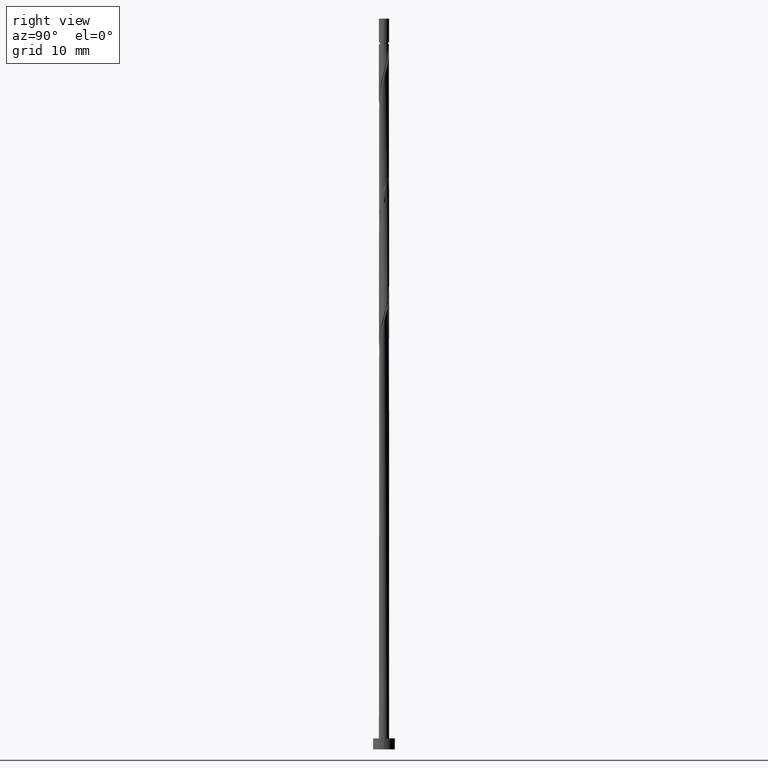
[diagram: clean part render]
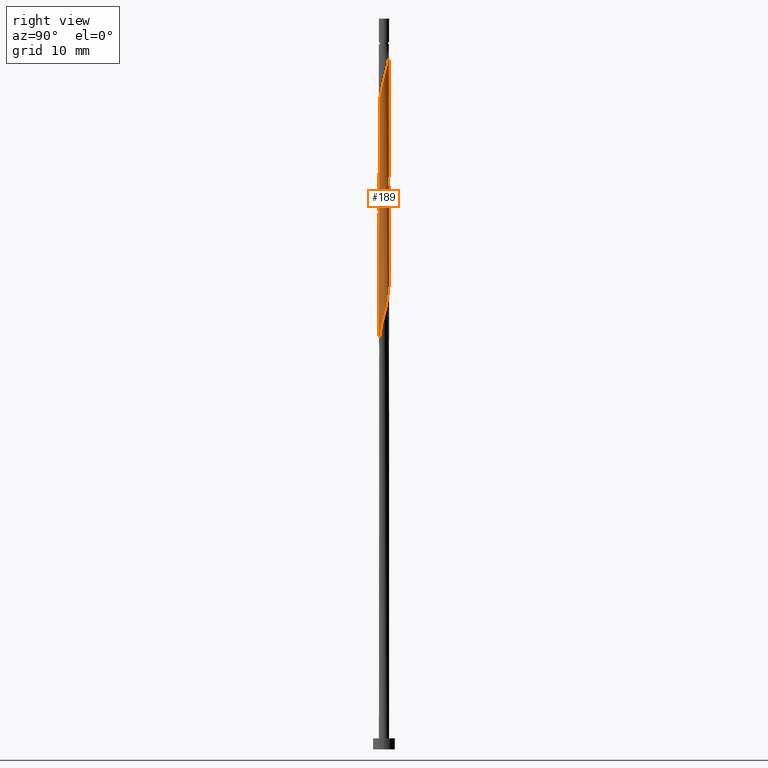
[diagram: same view with one face highlighted and labeled with its STEP entity id]
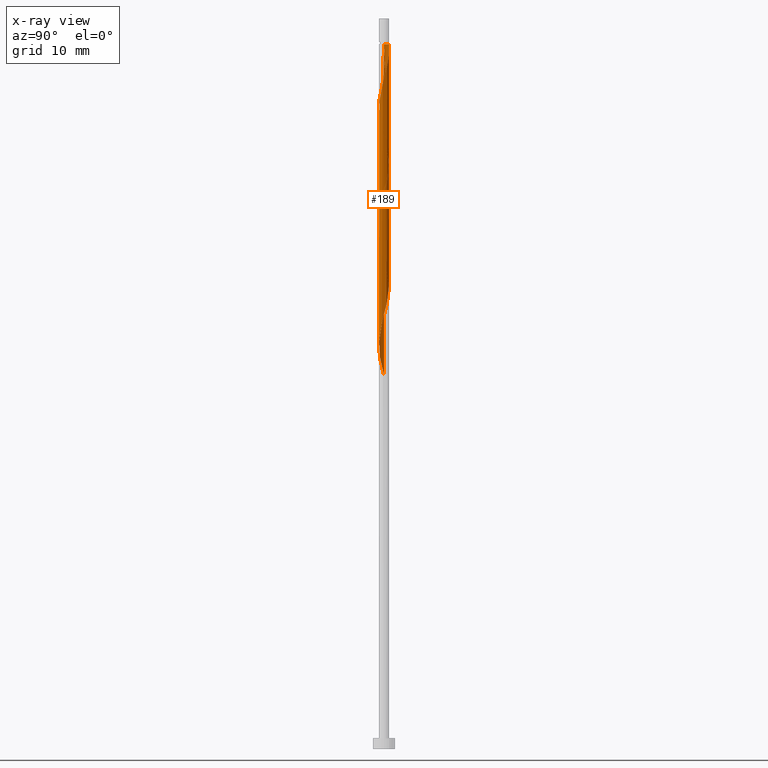
[diagram: x-ray of the same camera — body ghosted, the highlighted face saturated]
A machine part, right view. The second image highlights one B-rep face of the part: STEP entity #189.
The next image is the same camera in x-ray: the body ghosted, the highlighted face saturated — about 0% of this face is hidden behind the body in this view.
In plain terms, the highlighted cylindrical surface (bore or boss wall) has radius 0.7 mm, axis along (-0, -0, -1).
Its self-contained STEP definition (entity closure, byte-faithful):
#5 = CARTESIAN_POINT ( 'NONE',  ( -0.7000000000000009548, -4.406995131333641256E-16, 51.18214205642719605 ) ) ;
#11 = EDGE_CURVE ( 'NONE', #838, #365, #947, .T. ) ;
#19 = CARTESIAN_POINT ( 'NONE',  ( 0.7000000000000009548, 1.830023401994478145E-16, 76.18214205642722447 ) ) ;
#22 = CARTESIAN_POINT ( 'NONE',  ( 0.6513892328306682966, 0.2563046377892427286, 92.78091679773474709 ) ) ;
#25 = CARTESIAN_POINT ( 'NONE',  ( -0.2602585499609342823, -0.6614379617121001198, 71.02165753847550889 ) ) ;
#28 = CARTESIAN_POINT ( 'NONE',  ( 0.1392982411949271471, 0.6860000000000012754, 79.81795383477175676 ) ) ;
#33 = CARTESIAN_POINT ( 'NONE',  ( 0.2602585499609340602, 0.6614379617121001198, 79.35499087180882327 ) ) ;
#46 = CIRCLE ( 'NONE', #641, 0.7000000000000002887 ) ;
#51 = CARTESIAN_POINT ( 'NONE',  ( -0.6637425475935894159, -0.2223641844227016995, 68.70684272366065670 ) ) ;
#57 = CARTESIAN_POINT ( 'NONE',  ( 0.5244443063986623521, -0.4636358155772996592, 57.59573161254954954 ) ) ;
#62 = CARTESIAN_POINT ( 'NONE',  ( -0.7000000000000011768, 4.612405921353430004E-16, 84.51547538976051044 ) ) ;
#97 = CARTESIAN_POINT ( 'NONE',  ( -0.3655233476607376852, -0.5969863334406317890, 53.89202790884585426 ) ) ;
#103 = CARTESIAN_POINT ( 'NONE',  ( -0.4707881453605410882, -0.5325347051691633471, 53.42906494588288524 ) ) ;
#111 = CARTESIAN_POINT ( 'NONE',  ( 0.7029513528505444420, -0.1053284650377800530, 91.39202790884586136 ) ) ;
#116 = DIRECTION ( 'NONE',  ( -1.000000000000000000, 0.000000000000000000, 0.000000000000000000 ) ) ;
#117 = CARTESIAN_POINT ( 'NONE',  ( 0.5244443063986623521, -0.4636358155772996592, 74.26239827921619963 ) ) ;
#151 = CARTESIAN_POINT ( 'NONE',  ( 0.6997670043020833841, -0.01805933803021442241, 59.44758346440140429 ) ) ;
#159 = EDGE_CURVE ( 'NONE', #1133, #1107, #1301, .T. ) ;
#160 = CARTESIAN_POINT ( 'NONE',  ( -0.6061958099077143780, 0.3711621344802780720, 66.39202790884584715 ) ) ;
#184 = CARTESIAN_POINT ( 'NONE',  ( -0.6997670043020833841, -0.01805933803021412751, 83.52165753847545204 ) ) ;
#189 = ADVANCED_FACE ( 'NONE', ( #1176 ), #339, .T. ) ;
#192 = AXIS2_PLACEMENT_3D ( 'NONE', #439, #240, #658 ) ;
#204 = CARTESIAN_POINT ( 'NONE',  ( -0.2257945103930810715, -0.6739818462673711208, 86.76239827921624226 ) ) ;
#234 = CARTESIAN_POINT ( 'NONE',  ( 0.000000000000000000, 0.000000000000000000, 96.48462050143844237 ) ) ;
#240 = DIRECTION ( 'NONE',  ( -0.000000000000000000, -0.000000000000000000, -1.000000000000000000 ) ) ;
#253 = CARTESIAN_POINT ( 'NONE',  ( -0.5244443063986623521, 0.4636358155772993817, 65.92906494588288524 ) ) ;
#260 = CARTESIAN_POINT ( 'NONE',  ( -0.6513892328306682966, 0.2563046377892430061, 83.52165753847546625 ) ) ;
#267 = CARTESIAN_POINT ( 'NONE',  ( 0.6245337423366339458, 0.3393999038076240815, 77.50313901995696142 ) ) ;
#292 = CARTESIAN_POINT ( 'NONE',  ( -0.01833793242892000144, -0.7105620382879020980, 55.28091679773473288 ) ) ;
#296 = EDGE_CURVE ( 'NONE', #1133, #365, #1082, .T. ) ;
#316 = CARTESIAN_POINT ( 'NONE',  ( -0.5244443063986624631, -0.4636358155772990486, 85.37350939032732811 ) ) ;
#335 = DIRECTION ( 'NONE',  ( -0.000000000000000000, -0.000000000000000000, -1.000000000000000000 ) ) ;
#339 = CYLINDRICAL_SURFACE ( 'NONE', #192, 0.6999999999999999556 ) ;
#348 = CARTESIAN_POINT ( 'NONE',  ( 0.3655233476607380738, 0.5969863334406314559, 78.89202790884584715 ) ) ;
#349 = EDGE_CURVE ( 'NONE', #1173, #1107, #46, .T. ) ;
#351 = CARTESIAN_POINT ( 'NONE',  ( -0.6999999999999999556, 0.000000000000000000, 100.0000000000000000 ) ) ;
#353 = CARTESIAN_POINT ( 'NONE',  ( 0.7000000000000008438, -0.009031172032414765821, 76.14812468249485278 ) ) ;
#365 = VERTEX_POINT ( 'NONE', #865 ) ;
#372 = CARTESIAN_POINT ( 'NONE',  ( 0.6245337423366339458, 0.3393999038076240815, 60.83647235329029712 ) ) ;
#380 = CARTESIAN_POINT ( 'NONE',  ( 0.2257945103930809327, -0.6739818462673716759, 56.20684272366064960 ) ) ;
#391 = CARTESIAN_POINT ( 'NONE',  ( -0.3342436566413457544, 0.6150456714708457673, 65.00313901995694721 ) ) ;
#393 = VERTEX_POINT ( 'NONE', #974 ) ;
#436 = CARTESIAN_POINT ( 'NONE',  ( -0.3655233476607376852, -0.5969863334406317890, 70.55869457551250434 ) ) ;
#439 = CARTESIAN_POINT ( 'NONE',  ( 0.000000000000000000, 0.000000000000000000, 100.0000000000000000 ) ) ;
#441 = CARTESIAN_POINT ( 'NONE',  ( 0.6999999999999999556, 8.572527594031471957E-17, 100.0000000000000000 ) ) ;
#442 = CARTESIAN_POINT ( 'NONE',  ( -0.5476609438485877668, -0.4359673044883936588, 69.63276864958660894 ) ) ;
#447 = CARTESIAN_POINT ( 'NONE',  ( 0.6637425475935895269, 0.2223641844227018660, 77.04017605699402793 ) ) ;
#458 = CARTESIAN_POINT ( 'NONE',  ( 0.3342436566413457544, -0.6150456714708457673, 73.33647235329027581 ) ) ;
#469 = ORIENTED_EDGE ( 'NONE', *, *, #1315, .F. ) ;
#472 = DIRECTION ( 'NONE',  ( -0.000000000000000000, -0.000000000000000000, -1.000000000000000000 ) ) ;
#473 = CARTESIAN_POINT ( 'NONE',  ( -0.6965826557536223262, 0.1414471410982080235, 67.31795383477177097 ) ) ;
#477 = EDGE_LOOP ( 'NONE', ( #904, #525, #486, #922, #1077, #469, #959, #1219 ) ) ;
#484 = CARTESIAN_POINT ( 'NONE',  ( 0.6513892328306682966, -0.2563046377892429506, 58.52165753847549468 ) ) ;
#486 = ORIENTED_EDGE ( 'NONE', *, *, #159, .F. ) ;
#498 = CARTESIAN_POINT ( 'NONE',  ( -0.7000000000000010658, -4.033520967661301485E-16, 83.45376561311633168 ) ) ;
#509 = CARTESIAN_POINT ( 'NONE',  ( -0.4426928028896104372, -0.5561094966743203027, 85.83647235329029002 ) ) ;
#515 = CARTESIAN_POINT ( 'NONE',  ( -0.1392982411949270360, -0.6860000000000012754, 54.81795383477176387 ) ) ;
#522 = CARTESIAN_POINT ( 'NONE',  ( -0.3342436566413458654, -0.6150456714708457673, 86.29943531625326614 ) ) ;
#525 = ORIENTED_EDGE ( 'NONE', *, *, #349, .T. ) ;
#540 = CARTESIAN_POINT ( 'NONE',  ( -0.1392982411949270360, -0.6860000000000012754, 71.48462050143847080 ) ) ;
#550 = CARTESIAN_POINT ( 'NONE',  ( 0.4426928028896104372, -0.5561094966743207468, 73.79943531625325193 ) ) ;
#554 = CARTESIAN_POINT ( 'NONE',  ( 0.6061958099077143780, 0.3711621344802775724, 93.24387976069768058 ) ) ;
#557 = CARTESIAN_POINT ( 'NONE',  ( 0.6061958099077141560, -0.3711621344802785161, 74.72536124217918996 ) ) ;
#565 = VECTOR ( 'NONE', #999, 1000.000000000000000 ) ;
#577 = CARTESIAN_POINT ( 'NONE',  ( -0.6965826557536223262, 0.1414471410982080235, 83.98462050143844237 ) ) ;
#584 = CARTESIAN_POINT ( 'NONE',  ( -0.2257945103930810438, 0.6739818462673713428, 81.20684272366064249 ) ) ;
#588 = CARTESIAN_POINT ( 'NONE',  ( 0.6965826557536223262, -0.1414471410982081345, 58.98462050143844237 ) ) ;
#598 = CARTESIAN_POINT ( 'NONE',  ( -0.6513892328306682966, 0.2563046377892430061, 66.85499087180880906 ) ) ;
#627 = CARTESIAN_POINT ( 'NONE',  ( 0.6245337423366339458, -0.3393999038076242480, 90.46610198291992333 ) ) ;
#641 = AXIS2_PLACEMENT_3D ( 'NONE', #234, #335, #116 ) ;
#649 = CARTESIAN_POINT ( 'NONE',  ( 0.5476609438485873227, -0.4359673044883936588, 90.00313901995697563 ) ) ;
#658 = DIRECTION ( 'NONE',  ( -1.000000000000000000, 0.000000000000000000, 0.000000000000000000 ) ) ;
#659 = CARTESIAN_POINT ( 'NONE',  ( -0.01833793242892000144, -0.7105620382879020980, 71.94758346440141850 ) ) ;
#669 = CARTESIAN_POINT ( 'NONE',  ( 0.4426928028896104927, 0.5561094966743203027, 94.16980568662361861 ) ) ;
#678 = CARTESIAN_POINT ( 'NONE',  ( -0.6997670043020833841, 0.01805933803021419343, 84.44758346440139007 ) ) ;
#681 = CARTESIAN_POINT ( 'NONE',  ( -0.7000000000000002887, 0.000000000000000000, 96.48462050143844237 ) ) ;
#684 = CARTESIAN_POINT ( 'NONE',  ( 0.6513892328306682966, -0.2563046377892429506, 75.18832420514213766 ) ) ;
#690 = CARTESIAN_POINT ( 'NONE',  ( -0.1037282889820806686, 0.6922719422776366649, 64.07721309403102339 ) ) ;
#695 = CARTESIAN_POINT ( 'NONE',  ( 0.1392982411949271471, 0.6860000000000012754, 63.15128716810511378 ) ) ;
#702 = CARTESIAN_POINT ( 'NONE',  ( 0.01833793242891973430, 0.7105620382879019870, 80.28091679773476130 ) ) ;
#733 = CARTESIAN_POINT ( 'NONE',  ( 0.1392982411949268418, -0.6860000000000009424, 88.15128716810511378 ) ) ;
#749 = CARTESIAN_POINT ( 'NONE',  ( -0.5476609438485877668, -0.4359673044883936588, 52.96610198291993044 ) ) ;
#757 = CARTESIAN_POINT ( 'NONE',  ( 0.4707881453605408661, -0.5325347051691634581, 89.54017605699398530 ) ) ;
#765 = CARTESIAN_POINT ( 'NONE',  ( 0.2257945103930814323, 0.6739818462673710098, 95.09573161254954243 ) ) ;
#767 = CARTESIAN_POINT ( 'NONE',  ( 0.6997670043020833841, -0.01805933803021442241, 76.11425013106806148 ) ) ;
#781 = VECTOR ( 'NONE', #1283, 1000.000000000000000 ) ;
#791 = CARTESIAN_POINT ( 'NONE',  ( 0.6965826557536223262, -0.1414471410982081345, 75.65128716810509957 ) ) ;
#798 = CARTESIAN_POINT ( 'NONE',  ( -0.4426928028896104927, 0.5561094966743204138, 65.46610198291992333 ) ) ;
#805 = CARTESIAN_POINT ( 'NONE',  ( 0.4707881453605415323, 0.5325347051691630140, 61.76239827921622094 ) ) ;
#813 = CARTESIAN_POINT ( 'NONE',  ( -0.1392982411949209298, 0.6860000000000011644, 96.48462050143838553 ) ) ;
#823 = CARTESIAN_POINT ( 'NONE',  ( -0.6997670043020833841, 0.01805933803021419343, 67.78091679773473288 ) ) ;
#831 = CARTESIAN_POINT ( 'NONE',  ( -0.2257945103930810438, 0.6739818462673713428, 64.54017605699399951 ) ) ;
#838 = VERTEX_POINT ( 'NONE', #1201 ) ;
#849 = CARTESIAN_POINT ( 'NONE',  ( -0.7000000000000010658, -0.009031172032416346154, 83.48778298704868917 ) ) ;
#865 = CARTESIAN_POINT ( 'NONE',  ( -0.7000000000000009548, -4.406995131333641256E-16, 51.18214205642719605 ) ) ;
#875 = CARTESIAN_POINT ( 'NONE',  ( 0.3342436566413459764, 0.6150456714708456563, 94.63276864958658052 ) ) ;
#877 = CARTESIAN_POINT ( 'NONE',  ( 0.6997670043020833841, 0.01805933803021418996, 91.85499087180882327 ) ) ;
#882 = EDGE_CURVE ( 'NONE', #909, #838, #1026, .T. ) ;
#885 = CARTESIAN_POINT ( 'NONE',  ( -0.1392982411949209021, 0.6860000000000011644, 96.48462050143838553 ) ) ;
#886 = LINE ( 'NONE', #441, #565 ) ;
#890 = CARTESIAN_POINT ( 'NONE',  ( -0.7000000000000009548, 0.009031172032413995604, 84.48145801582813874 ) ) ;
#900 = CARTESIAN_POINT ( 'NONE',  ( -0.6245337423366339458, -0.3393999038076241925, 69.16980568662361861 ) ) ;
#904 = ORIENTED_EDGE ( 'NONE', *, *, #1279, .F. ) ;
#909 = VERTEX_POINT ( 'NONE', #62 ) ;
#911 = CARTESIAN_POINT ( 'NONE',  ( -0.5244443063986623521, 0.4636358155772993817, 82.59573161254952822 ) ) ;
#919 = CARTESIAN_POINT ( 'NONE',  ( 0.3342436566413457544, -0.6150456714708457673, 56.66980568662363282 ) ) ;
#922 = ORIENTED_EDGE ( 'NONE', *, *, #296, .T. ) ;
#938 = CARTESIAN_POINT ( 'NONE',  ( -0.2602585499609342823, -0.6614379617121001198, 54.35499087180882327 ) ) ;
#947 =( BOUNDED_CURVE ( )  B_SPLINE_CURVE ( 2, ( #19, #353, #767, #791, #684, #557, #117, #550, #458, #981, #1206, #659, #540, #25, #436, #987, #442, #900, #51, #1337, #823, #473, #598, #160, #253, #798, #391, #831, #690, #1308, #695, #1314, #1007, #805, #1216, #372, #1025, #1116, #151, #588, #484, #1017, #57, #1328, #919, #380, #1229, #292, #515, #938, #97, #103, #749, #1240, #1163, #1350, #5 ),
 .UNSPECIFIED., .F., .T. ) 
 B_SPLINE_CURVE_WITH_KNOTS ( ( 3, 2, 2, 2, 2, 2, 2, 2, 2, 2, 2, 2, 2, 2, 2, 2, 2, 2, 2, 2, 2, 2, 2, 2, 2, 2, 2, 2, 3 ),
 ( 0.5545248053855290626, 0.5555555555555555802, 0.5694444444444444198, 0.5833333333333333703, 0.5972222222222222099, 0.6111111111111111605, 0.6250000000000000000, 0.6388888888888888395, 0.6527777777777777901, 0.6666666666666666297, 0.6805555555555555802, 0.6944444444444444198, 0.7083333333333333703, 0.7222222222222222099, 0.7361111111111111605, 0.7500000000000000000, 0.7638888888888888395, 0.7777777777777777901, 0.7916666666666666297, 0.8055555555555555802, 0.8194444444444444198, 0.8333333333333333703, 0.8472222222222222099, 0.8611111111111111605, 0.8750000000000000000, 0.8888888888888888395, 0.9027777777777777901, 0.9166666666666666297, 0.9295248053855290626 ),
 .UNSPECIFIED. ) 
 CURVE ( )  GEOMETRIC_REPRESENTATION_ITEM ( )  RATIONAL_B_SPLINE_CURVE ( ( 0.9071930855141261407, 0.9080659294509737522, 0.9090909090909138346, 0.8952797754656482976, 0.9090909090909138346, 0.8952797754656482976, 0.9090909090909138346, 0.8952797754656482976, 0.9090909090909138346, 0.8952797754656482976, 0.9090909090909138346, 0.8952797754656482976, 0.9090909090909138346, 0.8952797754656482976, 0.9090909090909138346, 0.8952797754656482976, 0.9090909090909138346, 0.8952797754656482976, 0.9090909090909138346, 0.8952797754656482976, 0.9090909090909138346, 0.8952797754656482976, 0.9090909090909138346, 0.8952797754656482976, 0.9090909090909138346, 0.8952797754656482976, 0.9090909090909138346, 0.8952797754656482976, 0.9090909090909138346, 0.8952797754656482976, 0.9090909090909138346, 0.8952797754656482976, 0.9090909090909138346, 0.8952797754656482976, 0.9090909090909138346, 0.8952797754656482976, 0.9090909090909138346, 0.8952797754656482976, 0.9090909090909138346, 0.8952797754656482976, 0.9090909090909138346, 0.8952797754656482976, 0.9090909090909138346, 0.8952797754656482976, 0.9090909090909138346, 0.8952797754656482976, 0.9090909090909138346, 0.8952797754656482976, 0.9090909090909138346, 0.8952797754656482976, 0.9090909090909138346, 0.8952797754656482976, 0.9090909090909138346, 0.8952797754656482976, 0.9090909090909138346, 0.8963047551055883799, 0.9071930855141261407 ) ) 
 REPRESENTATION_ITEM ( '' )  );
#958 = CARTESIAN_POINT ( 'NONE',  ( 0.01833793242891950878, -0.7105620382879020980, 87.68832420514215187 ) ) ;
#959 = ORIENTED_EDGE ( 'NONE', *, *, #1315, .T. ) ;
#965 = CARTESIAN_POINT ( 'NONE',  ( 0.2602585499609338382, -0.6614379617121002308, 88.61425013106808990 ) ) ;
#974 = CARTESIAN_POINT ( 'NONE',  ( 0.6999999999999999556, 8.572527594031471957E-17, 96.48462050143844237 ) ) ;
#981 = CARTESIAN_POINT ( 'NONE',  ( 0.2257945103930809327, -0.6739818462673716759, 72.87350939032731389 ) ) ;
#984 = CARTESIAN_POINT ( 'NONE',  ( 0.6637425475935891939, -0.2223641844227021713, 90.92906494588288524 ) ) ;
#987 = CARTESIAN_POINT ( 'NONE',  ( -0.4707881453605410882, -0.5325347051691633471, 70.09573161254952822 ) ) ;
#992 = CARTESIAN_POINT ( 'NONE',  ( -0.1037282889820806686, 0.6922719422776366649, 80.74387976069772321 ) ) ;
#993 = CARTESIAN_POINT ( 'NONE',  ( -0.6999999999999999556, 0.000000000000000000, 100.0000000000000000 ) ) ;
#999 = DIRECTION ( 'NONE',  ( -0.000000000000000000, -0.000000000000000000, -1.000000000000000000 ) ) ;
#1007 = CARTESIAN_POINT ( 'NONE',  ( 0.3655233476607380738, 0.5969863334406314559, 62.22536124217918285 ) ) ;
#1011 = VECTOR ( 'NONE', #472, 1000.000000000000000 ) ;
#1014 = LINE ( 'NONE', #351, #1011 ) ;
#1017 = CARTESIAN_POINT ( 'NONE',  ( 0.6061958099077141560, -0.3711621344802785161, 58.05869457551251855 ) ) ;
#1025 = CARTESIAN_POINT ( 'NONE',  ( 0.6637425475935895269, 0.2223641844227018660, 60.37350939032733521 ) ) ;
#1026 =( BOUNDED_CURVE ( )  B_SPLINE_CURVE ( 2, ( #1303, #890, #678, #577, #260, #1297, #911, #1312, #1092, #584, #992, #702, #28, #33, #348, #1319, #1222, #267, #447, #1099, #1293 ),
 .UNSPECIFIED., .F., .T. ) 
 B_SPLINE_CURVE_WITH_KNOTS ( ( 3, 2, 2, 2, 2, 2, 2, 2, 2, 2, 3 ),
 ( 0.4295248053855290071, 0.4305555555555555802, 0.4444444444444444198, 0.4583333333333333148, 0.4722222222222222099, 0.4861111111111111049, 0.5000000000000000000, 0.5138888888888888395, 0.5277777777777777901, 0.5416666666666666297, 0.5545248053855290626 ),
 .UNSPECIFIED. ) 
 CURVE ( )  GEOMETRIC_REPRESENTATION_ITEM ( )  RATIONAL_B_SPLINE_CURVE ( ( 0.9071930855141260297, 0.9080659294509737522, 0.9090909090909138346, 0.8952797754656482976, 0.9090909090909138346, 0.8952797754656482976, 0.9090909090909138346, 0.8952797754656482976, 0.9090909090909138346, 0.8952797754656482976, 0.9090909090909138346, 0.8952797754656482976, 0.9090909090909138346, 0.8952797754656482976, 0.9090909090909138346, 0.8952797754656482976, 0.9090909090909138346, 0.8952797754656482976, 0.9090909090909138346, 0.8963047551055883799, 0.9071930855141261407 ) ) 
 REPRESENTATION_ITEM ( '' )  );
#1072 = CARTESIAN_POINT ( 'NONE',  ( -0.6513892328306680746, -0.2563046377892428951, 84.44758346440140429 ) ) ;
#1077 = ORIENTED_EDGE ( 'NONE', *, *, #11, .F. ) ;
#1078 = CARTESIAN_POINT ( 'NONE',  ( 0.6965826557536219932, 0.1414471410982078292, 92.31795383477179939 ) ) ;
#1082 = LINE ( 'NONE', #993, #781 ) ;
#1090 = CARTESIAN_POINT ( 'NONE',  ( 0.5244443063986623521, 0.4636358155772992151, 93.70684272366065670 ) ) ;
#1092 = CARTESIAN_POINT ( 'NONE',  ( -0.3342436566413457544, 0.6150456714708457673, 81.66980568662364703 ) ) ;
#1099 = CARTESIAN_POINT ( 'NONE',  ( 0.7000000000000011768, 0.1141380602743195388, 76.61206156879282503 ) ) ;
#1107 = VERTEX_POINT ( 'NONE', #813 ) ;
#1116 = CARTESIAN_POINT ( 'NONE',  ( 0.7029513528505447750, 0.1053284650377791926, 59.91054642736436620 ) ) ;
#1133 = VERTEX_POINT ( 'NONE', #1182 ) ;
#1163 = CARTESIAN_POINT ( 'NONE',  ( -0.6637425475935894159, -0.2223641844227016995, 52.04017605699399240 ) ) ;
#1173 = VERTEX_POINT ( 'NONE', #681 ) ;
#1176 = FACE_OUTER_BOUND ( 'NONE', #477, .T. ) ;
#1181 = CARTESIAN_POINT ( 'NONE',  ( -0.01833793242891971695, 0.7105620382879018759, 96.02165753847543783 ) ) ;
#1182 = CARTESIAN_POINT ( 'NONE',  ( -0.7000000000000010658, -4.033520967661301485E-16, 83.45376561311633168 ) ) ;
#1195 = CARTESIAN_POINT ( 'NONE',  ( 0.1037282889820811543, 0.6922719422776364429, 95.55869457551253277 ) ) ;
#1201 = CARTESIAN_POINT ( 'NONE',  ( 0.7000000000000009548, 1.830023401994478145E-16, 76.18214205642722447 ) ) ;
#1206 = CARTESIAN_POINT ( 'NONE',  ( 0.1037282889820806547, -0.6922719422776366649, 72.41054642736436620 ) ) ;
#1216 = CARTESIAN_POINT ( 'NONE',  ( 0.5476609438485877668, 0.4359673044883934367, 61.29943531625325903 ) ) ;
#1219 = ORIENTED_EDGE ( 'NONE', *, *, #882, .F. ) ;
#1222 = CARTESIAN_POINT ( 'NONE',  ( 0.5476609438485877668, 0.4359673044883934367, 77.96610198291993754 ) ) ;
#1229 = CARTESIAN_POINT ( 'NONE',  ( 0.1037282889820806547, -0.6922719422776366649, 55.74387976069771611 ) ) ;
#1240 = CARTESIAN_POINT ( 'NONE',  ( -0.6245337423366339458, -0.3393999038076241925, 52.50313901995695431 ) ) ;
#1247 = CARTESIAN_POINT ( 'NONE',  ( -0.1037282889820807519, -0.6922719422776365539, 87.22536124217920417 ) ) ;
#1260 = CARTESIAN_POINT ( 'NONE',  ( -0.6061958099077141560, -0.3711621344802780720, 84.91054642736435198 ) ) ;
#1279 = EDGE_CURVE ( 'NONE', #1173, #909, #1014, .T. ) ;
#1283 = DIRECTION ( 'NONE',  ( -0.000000000000000000, -0.000000000000000000, -1.000000000000000000 ) ) ;
#1293 = CARTESIAN_POINT ( 'NONE',  ( 0.7000000000000009548, 1.830023401994478145E-16, 76.18214205642722447 ) ) ;
#1297 = CARTESIAN_POINT ( 'NONE',  ( -0.6061958099077143780, 0.3711621344802780720, 83.05869457551249013 ) ) ;
#1301 =( BOUNDED_CURVE ( )  B_SPLINE_CURVE ( 2, ( #498, #849, #184, #1342, #1072, #1260, #316, #509, #522, #204, #1247, #958, #733, #965, #1365, #757, #649, #627, #984, #111, #877, #1078, #22, #554, #1090, #669, #875, #765, #1195, #1181, #885 ),
 .UNSPECIFIED., .F., .T. ) 
 B_SPLINE_CURVE_WITH_KNOTS ( ( 3, 2, 2, 2, 2, 2, 2, 2, 2, 2, 2, 2, 2, 2, 2, 3 ),
 ( 0.5545248053855292847, 0.5555555555555555802, 0.5694444444444444198, 0.5833333333333332593, 0.5972222222222222099, 0.6111111111111111605, 0.6250000000000000000, 0.6388888888888888395, 0.6527777777777777901, 0.6666666666666667407, 0.6805555555555555802, 0.6944444444444444198, 0.7083333333333332593, 0.7222222222222222099, 0.7361111111111111605, 0.7500000000000000000 ),
 .UNSPECIFIED. ) 
 CURVE ( )  GEOMETRIC_REPRESENTATION_ITEM ( )  RATIONAL_B_SPLINE_CURVE ( ( 0.9071930855141258077, 0.9080659294509733082, 0.9090909090909131685, 0.8952797754656477425, 0.9090909090909131685, 0.8952797754656477425, 0.9090909090909131685, 0.8952797754656477425, 0.9090909090909131685, 0.8952797754656477425, 0.9090909090909131685, 0.8952797754656477425, 0.9090909090909131685, 0.8952797754656477425, 0.9090909090909131685, 0.8952797754656477425, 0.9090909090909131685, 0.8952797754656477425, 0.9090909090909131685, 0.8952797754656477425, 0.9090909090909131685, 0.8952797754656477425, 0.9090909090909131685, 0.8952797754656477425, 0.9090909090909131685, 0.8952797754656477425, 0.9090909090909131685, 0.8952797754656477425, 0.9090909090909131685, 0.8952797754656477425, 0.9090909090909131685 ) ) 
 REPRESENTATION_ITEM ( '' )  );
#1303 = CARTESIAN_POINT ( 'NONE',  ( -0.7000000000000012879, 4.612405921353430004E-16, 84.51547538976051044 ) ) ;
#1308 = CARTESIAN_POINT ( 'NONE',  ( 0.01833793242891973430, 0.7105620382879019870, 63.61425013106806858 ) ) ;
#1312 = CARTESIAN_POINT ( 'NONE',  ( -0.4426928028896104927, 0.5561094966743204138, 82.13276864958658052 ) ) ;
#1314 = CARTESIAN_POINT ( 'NONE',  ( 0.2602585499609340602, 0.6614379617121001198, 62.68832420514215187 ) ) ;
#1315 = EDGE_CURVE ( 'NONE', #393, #838, #886, .T. ) ;
#1319 = CARTESIAN_POINT ( 'NONE',  ( 0.4707881453605415323, 0.5325347051691630140, 78.42906494588289945 ) ) ;
#1328 = CARTESIAN_POINT ( 'NONE',  ( 0.4426928028896104372, -0.5561094966743207468, 57.13276864958658763 ) ) ;
#1337 = CARTESIAN_POINT ( 'NONE',  ( -0.7029513528505447750, -0.1053284650377796505, 68.24387976069769479 ) ) ;
#1342 = CARTESIAN_POINT ( 'NONE',  ( -0.6965826557536219932, -0.1414471410982079125, 83.98462050143842816 ) ) ;
#1350 = CARTESIAN_POINT ( 'NONE',  ( -0.7000000000000011768, -0.1141380602743199413, 51.61206156879282503 ) ) ;
#1365 = CARTESIAN_POINT ( 'NONE',  ( 0.3655233476607375187, -0.5969863334406314559, 89.07721309403103760 ) ) ;